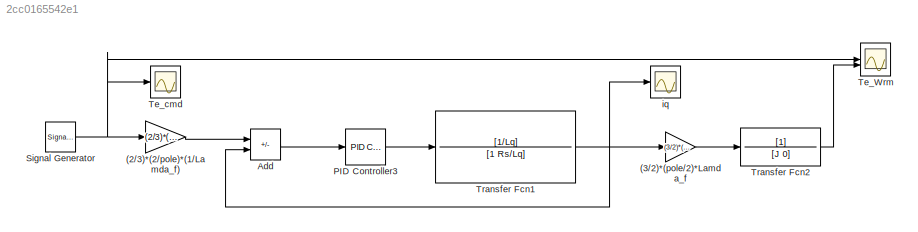
MODEL slx_2cc0165542e1
KIND model
CONFIG AbsTol = auto
CONFIG EnableMultiTasking = off
CONFIG FixedStep = auto
CONFIG MaxStep = 0.0005
CONFIG MinStep = auto
CONFIG RelTol = 1e-3
CONFIG SampleTimeConstraint = Unconstrained
CONFIG SolverName = VariableStepAuto
CONFIG StartTime = 0.0
CONFIG StopTime = 0.5
BLOCK [Gain] (2//3)*(2//pole)*(1//Lamda_f)
  Gain = (2/3)*(2/pole)*(1/Lamda_f)
BLOCK [Gain] (3//2)*(pole//2)*Lamda_f
  Gain = (3/2)*(pole/2)*Lamda_f
BLOCK [Sum] Add
  IconShape = rectangular
  Inputs = +-
BLOCK [Reference] PID Controller3  REF=slpidlib/PID Controller
  LibrarySourceBlock = simulink/Continuous/PID Controller
  SourceBlock = slpidlib/PID Controller
  SourceType = PID 1dof
BLOCK [SignalGenerator] Signal Generator 
  Amplitude = -0.2
  Frequency = 10
  WaveForm = square
BLOCK [Scope] Te_Wrm
  Floating = off
  NumInputPorts = 2
  ScopeSpecificationString = Simulink.scopes.TimeScopeBlockCfg('CurrentConfiguration', extmgr.ConfigurationSet(extmgr.Configuration('Core','General UI',true,'FigureColor',[1 1 1]),extmgr.Configuration('Core','Source UI',true),extmgr.Configuration('Sources','WiredSimulink',true,'DataLoggingVariableName','ScopeData1'),extmgr.Configuration('Visuals','Time Domain',true,'SerializedDisplays',{struct('MinYLimReal','-0.25','MaxYLimRe...<+2442ch>
BLOCK [Scope] Te_cmd
  Floating = off
  NumInputPorts = 1
  ScopeSpecificationString = Simulink.scopes.TimeScopeBlockCfg('CurrentConfiguration', extmgr.ConfigurationSet(extmgr.Configuration('Core','General UI',true,'FigureColor',[1 1 1]),extmgr.Configuration('Core','Source UI',true),extmgr.Configuration('Sources','WiredSimulink',true,'DataLoggingVariableName','ScopeData2'),extmgr.Configuration('Visuals','Time Domain',true,'SerializedDisplays',{struct('MinYLimReal','-0.25','MaxYLimRe...<+1551ch>
BLOCK [TransferFcn] Transfer Fcn1
  Denominator = [1 Rs/Lq]
  Numerator = [1/Lq]
BLOCK [TransferFcn] Transfer Fcn2
  Denominator = [J 0]
BLOCK [Scope] iq
  Floating = off
  NumInputPorts = 1
  ScopeSpecificationString = Simulink.scopes.TimeScopeBlockCfg('CurrentConfiguration', extmgr.ConfigurationSet(extmgr.Configuration('Core','General UI',true,'FigureColor',[1 1 1]),extmgr.Configuration('Core','Source UI',true),extmgr.Configuration('Sources','WiredSimulink',true,'DataLoggingVariableName','ScopeData1'),extmgr.Configuration('Visuals','Time Domain',true,'SerializedDisplays',{struct('MinYLimReal','-2.77778','MaxYLi...<+1565ch>
LINE (2//3)*(2//pole)*(1//Lamda_f):1 -> Add:1
LINE (3//2)*(pole//2)*Lamda_f:1 -> Transfer Fcn2:1
LINE Add:1 -> PID Controller3:1
LINE PID Controller3:1 -> Transfer Fcn1:1
NET Signal Generator :1 -> (2//3)*(2//pole)*(1//Lamda_f):1, Te_Wrm:1, Te_cmd:1
NET Transfer Fcn1:1 -> (3//2)*(pole//2)*Lamda_f:1, Add:2, iq:1
LINE Transfer Fcn2:1 -> Te_Wrm:2
note: NET lines group one-source signal fan-out (src -> all destinations, sorted); 1:1 wires keep LINE
